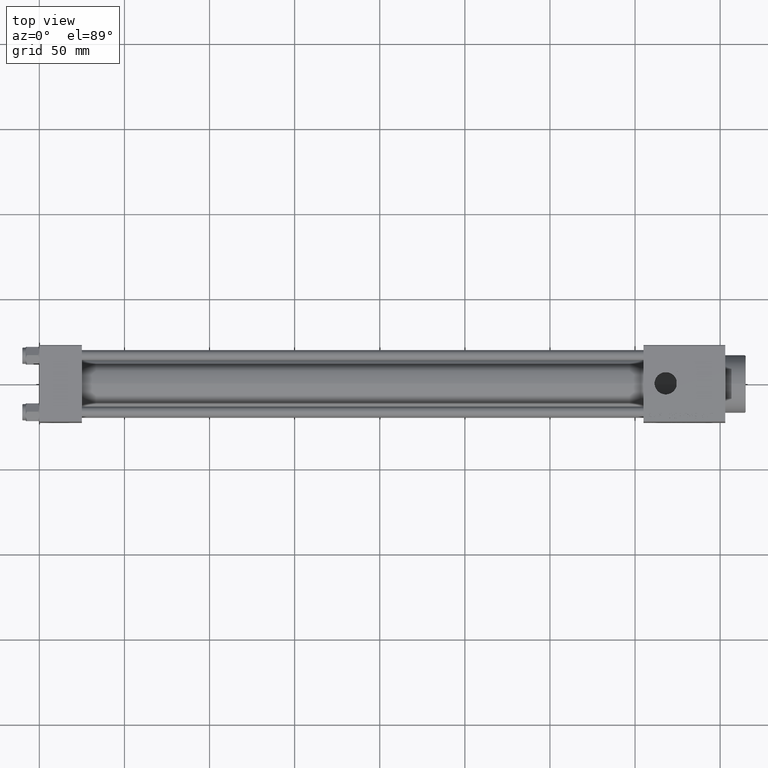
[diagram: clean part render]
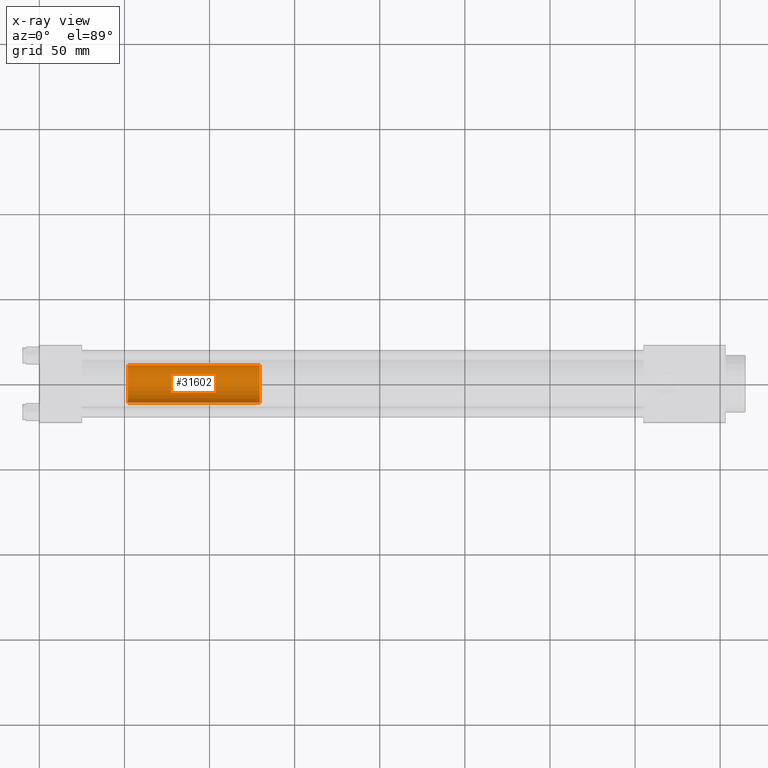
[diagram: x-ray — body ghosted, one internal face saturated and labeled with its STEP entity id]
A machine part, top view, then the same camera in x-ray: the body is ghosted and one INTERNAL B-rep face — a face not visible from any outside direction — is saturated and labeled: STEP entity #31602.
In plain terms, the highlighted cylindrical surface (edge-blend (fillet) strip) has radius 11 mm, axis along (-1, 0, 0).
Its self-contained STEP definition (entity closure, byte-faithful):
#1625 = CYLINDRICAL_SURFACE ( 'NONE', #19571, 11.00000000000000000 ) ;
#1871 = DIRECTION ( 'NONE',  ( -0.000000000000000000, -0.000000000000000000, -1.000000000000000000 ) ) ;
#2690 = CARTESIAN_POINT ( 'NONE',  ( 11.00000000000000000, 1.347111479062088405E-15, 104.5000000000000142 ) ) ;
#3623 = ORIENTED_EDGE ( 'NONE', *, *, #14078, .T. ) ;
#3664 = EDGE_LOOP ( 'NONE', ( #8109, #42340, #3623, #5620 ) ) ;
#4077 = DIRECTION ( 'NONE',  ( 1.000000000000000000, 0.000000000000000000, 0.000000000000000000 ) ) ;
#5620 = ORIENTED_EDGE ( 'NONE', *, *, #21398, .F. ) ;
#7346 = LINE ( 'NONE', #18665, #47479 ) ;
#7646 = VERTEX_POINT ( 'NONE', #2690 ) ;
#8109 = ORIENTED_EDGE ( 'NONE', *, *, #23951, .T. ) ;
#9095 = DIRECTION ( 'NONE',  ( -1.000000000000000000, 0.000000000000000000, 0.000000000000000000 ) ) ;
#11990 = AXIS2_PLACEMENT_3D ( 'NONE', #23615, #46481, #4077 ) ;
#12570 = EDGE_CURVE ( 'NONE', #7646, #40312, #20792, .T. ) ;
#13121 = AXIS2_PLACEMENT_3D ( 'NONE', #38077, #41667, #49888 ) ;
#14078 = EDGE_CURVE ( 'NONE', #40312, #39170, #39060, .T. ) ;
#17292 = CARTESIAN_POINT ( 'NONE',  ( 0.000000000000000000, 0.000000000000000000, 105.0000000000000000 ) ) ;
#18409 = DIRECTION ( 'NONE',  ( -0.000000000000000000, -0.000000000000000000, -1.000000000000000000 ) ) ;
#18665 = CARTESIAN_POINT ( 'NONE',  ( -11.00000000000000000, 0.000000000000000000, 105.0000000000000000 ) ) ;
#19571 = AXIS2_PLACEMENT_3D ( 'NONE', #17292, #1871, #9095 ) ;
#20792 = LINE ( 'NONE', #40562, #38993 ) ;
#20819 = VERTEX_POINT ( 'NONE', #37017 ) ;
#21398 = EDGE_CURVE ( 'NONE', #20819, #39170, #7346, .T. ) ;
#23615 = CARTESIAN_POINT ( 'NONE',  ( 0.000000000000000000, 0.000000000000000000, 27.00000000000000000 ) ) ;
#23951 = EDGE_CURVE ( 'NONE', #20819, #7646, #41832, .T. ) ;
#29265 = DIRECTION ( 'NONE',  ( -0.000000000000000000, -0.000000000000000000, -1.000000000000000000 ) ) ;
#31602 = ADVANCED_FACE ( 'NONE', ( #45028 ), #1625, .T. ) ;
#37017 = CARTESIAN_POINT ( 'NONE',  ( -11.00000000000000000, 0.000000000000000000, 104.5000000000000142 ) ) ;
#38064 = CARTESIAN_POINT ( 'NONE',  ( -11.00000000000000000, 0.000000000000000000, 27.00000000000000000 ) ) ;
#38077 = CARTESIAN_POINT ( 'NONE',  ( 0.000000000000000000, 0.000000000000000000, 104.5000000000000142 ) ) ;
#38993 = VECTOR ( 'NONE', #29265, 1000.000000000000000 ) ;
#39060 = CIRCLE ( 'NONE', #11990, 11.00000000000000000 ) ;
#39170 = VERTEX_POINT ( 'NONE', #38064 ) ;
#40312 = VERTEX_POINT ( 'NONE', #43116 ) ;
#40562 = CARTESIAN_POINT ( 'NONE',  ( 11.00000000000000000, 1.347111479062088405E-15, 105.0000000000000000 ) ) ;
#41667 = DIRECTION ( 'NONE',  ( 0.000000000000000000, 0.000000000000000000, -1.000000000000000000 ) ) ;
#41832 = CIRCLE ( 'NONE', #13121, 11.00000000000000000 ) ;
#42340 = ORIENTED_EDGE ( 'NONE', *, *, #12570, .T. ) ;
#43116 = CARTESIAN_POINT ( 'NONE',  ( 11.00000000000000000, 1.347111479062088405E-15, 27.00000000000000000 ) ) ;
#45028 = FACE_OUTER_BOUND ( 'NONE', #3664, .T. ) ;
#46481 = DIRECTION ( 'NONE',  ( 0.000000000000000000, 0.000000000000000000, 1.000000000000000000 ) ) ;
#47479 = VECTOR ( 'NONE', #18409, 1000.000000000000000 ) ;
#49888 = DIRECTION ( 'NONE',  ( 1.000000000000000000, 0.000000000000000000, 0.000000000000000000 ) ) ;